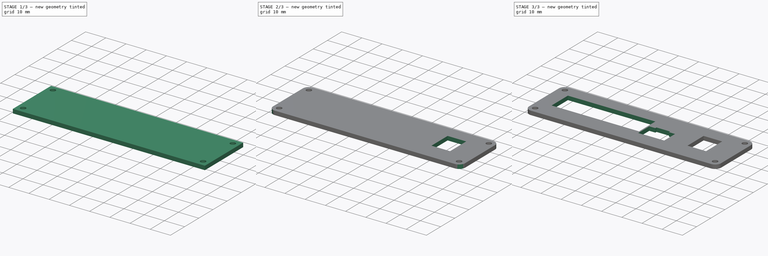
[diagram: build sequence overview — one tinted view per stage of 3, left to right]
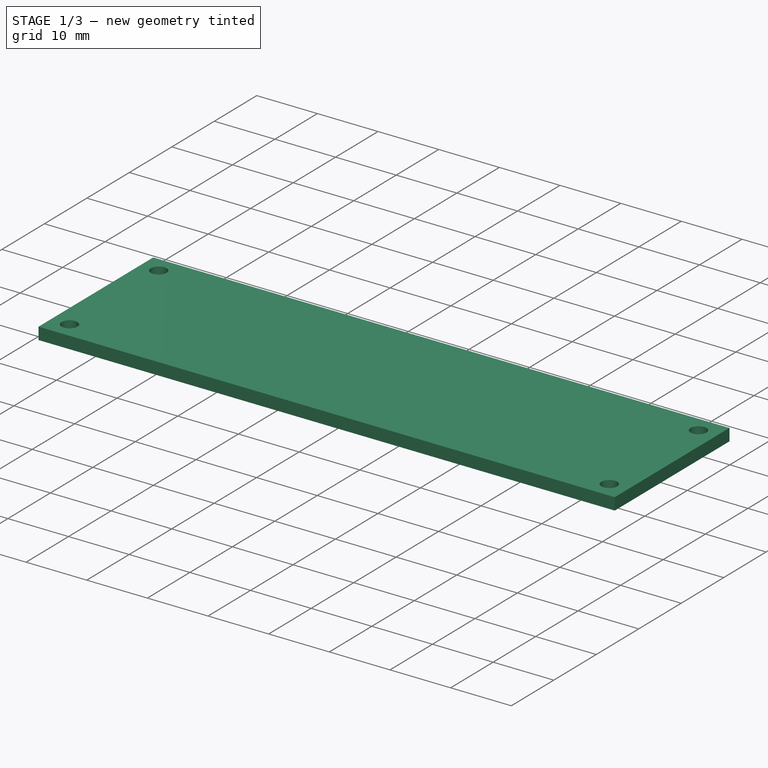
[diagram: stage 1 of 3 — iso view after this stage's code; geometry added in this stage tinted green]
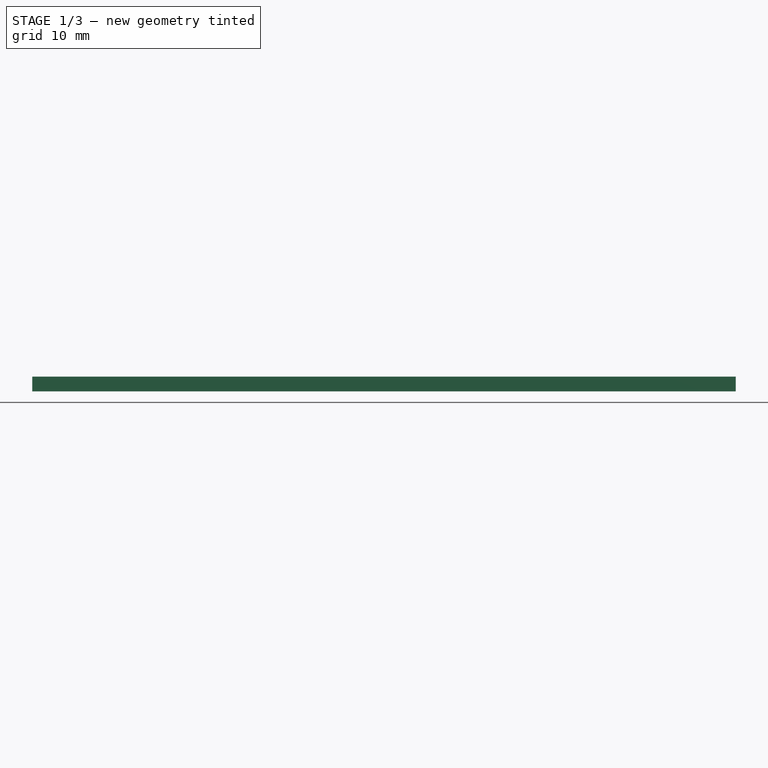
[diagram: stage 1 of 3 — front view after this stage's code; geometry added in this stage tinted green]
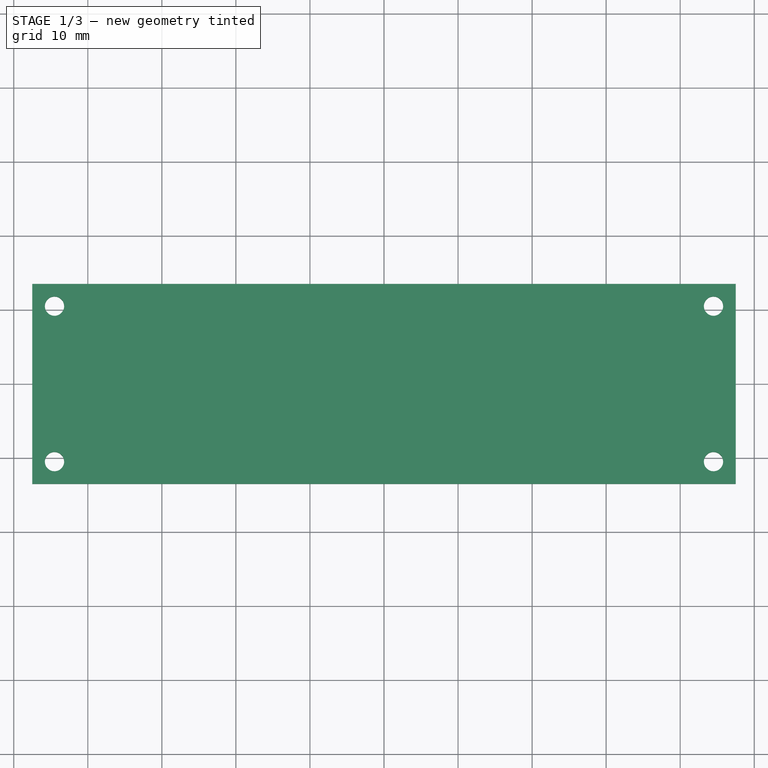
[diagram: stage 1 of 3 — top view after this stage's code; geometry added in this stage tinted green]
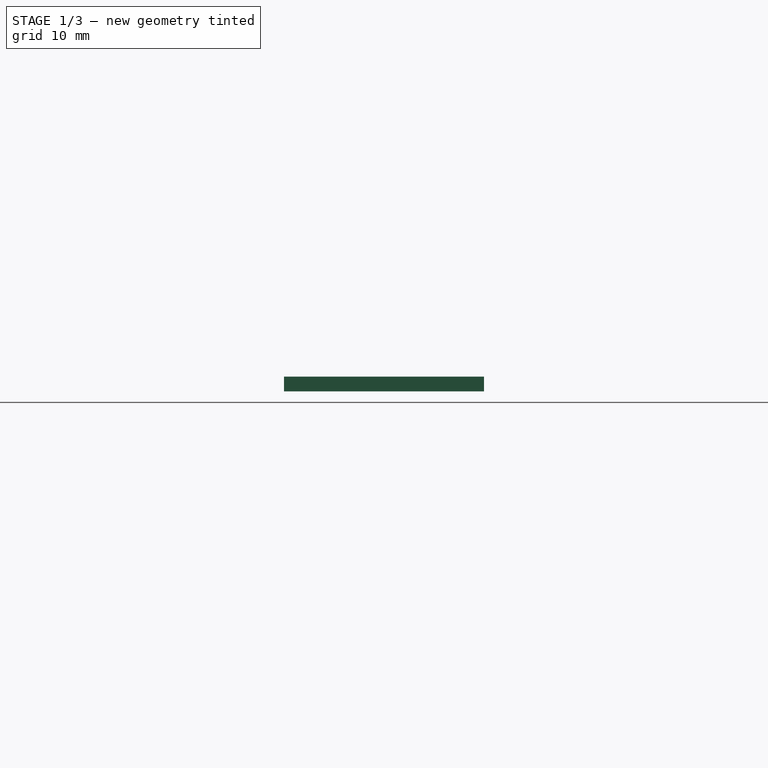
[diagram: stage 1 of 3 — right view after this stage's code; geometry added in this stage tinted green]
FCSTD DOCUMENT  (FreeCAD 1.1R44227 +568 (Git))
Label: Edgeberry_SenseAndDrive_faceplate
License: All rights reserved
LicenseURL: http://en.wikipedia.org/wiki/All_rights_reserved
objects: Sketcher::SketchObject×5, PartDesign::Pocket×4, PartDesign::Pad×1, PartDesign::Fillet×1, PartDesign::Body×1, App::Point×1
note: 29 computed .brp shape members not serialized (recipe doc carries the construction recipe); baked Part::Feature solids carry a one-line shape summary decoded from their .brp

FEATURE [Sketcher::SketchObject] Sketch
  ArcFitTolerance = 0
  AttachmentSupport = -> [XY_Plane]
  ExternalTypes = [0]
  FullyConstrained = true
  MakeInternals = false
  MapMode = 5
  _ExternalGeoVersion = 0
  sketch-geometry (4):
    g0: LineSegment StartX=47.5 StartY=13.5 StartZ=0 EndX=-47.5 EndY=13.5 EndZ=0
    g1: LineSegment StartX=-47.5 StartY=13.5 StartZ=0 EndX=-47.5 EndY=-13.5 EndZ=0
    g2: LineSegment StartX=-47.5 StartY=-13.5 StartZ=0 EndX=47.5 EndY=-13.5 EndZ=0
    g3: LineSegment StartX=47.5 StartY=-13.5 StartZ=0 EndX=47.5 EndY=13.5 EndZ=0
  constraints (12):
    c: Coincident(g0,g1)
    c: Coincident(g1,g2)
    c: Coincident(g2,g3)
    c: Coincident(g3,g0)
    c: Horizontal(g0)
    c: Horizontal(g2)
    c: Vertical(g1)
    c: Vertical(g3)
    c: DistanceX(g0,g0) = 95
    c: DistanceY(g2,g0) = 27
    c: DistanceX(g0,g-1) = 47.5
    c: DistanceY(g1,g-1) = 13.5
FEATURE [PartDesign::Pad] Pad
  Direction = (0,0,1)
  Length = 2
  Length2 = 10
  Profile = -> Sketch
  ReferenceAxis = -> Sketch [N_Axis]
  SideType = 0
  Suppressed = false
  Type = 0
  Type2 = 0
FEATURE [Sketcher::SketchObject] Sketch001
  ArcFitTolerance = 0
  AttachmentSupport = -> [Pad]
  ExternalGeometry = -> [Pad]
  ExternalTypes = [0]
  FullyConstrained = true
  MakeInternals = false
  MapMode = 5
  Placement = pos=(0,0,2) rot=(0,0,1;0rad)
  _ExternalGeoVersion = 0
  sketch-geometry (4):
    g0: Circle CenterX=-44.5 CenterY=10.5 CenterZ=0 NormalX=0 NormalY=0 NormalZ=1 AngleXU=0 Radius=1.3
    g1: Circle CenterX=44.5 CenterY=10.5 CenterZ=0 NormalX=0 NormalY=0 NormalZ=1 AngleXU=0 Radius=1.3
    g2: Circle CenterX=44.5 CenterY=-10.5 CenterZ=0 NormalX=0 NormalY=0 NormalZ=1 AngleXU=0 Radius=1.3
    g3: Circle CenterX=-44.5 CenterY=-10.5 CenterZ=0 NormalX=0 NormalY=0 NormalZ=1 AngleXU=0 Radius=1.3
  constraints (12):
    c: DistanceX(g-4,g0) = 3
    c: DistanceY(g0,g-4) = 3
    c: Diameter(g0) = 2.6
    c: DistanceX(g1,g-6) = 3
    c: DistanceY(g1,g-6) = 3
    c: Diameter(g1) = 2.6
    c: DistanceX(g2,g-6) = 3
    c: DistanceY(g-6,g2) = 3
    c: Diameter(g2) = 2.6
    c: DistanceX(g-4,g3) = 3
    c: DistanceY(g-4,g3) = 3
    c: Diameter(g3) = 2.6
FEATURE [PartDesign::Pocket] Pocket
  BaseFeature = -> Pad
  Direction = (0,0,-1)
  Length = 2
  Length2 = 5
  Profile = -> Sketch001
  ReferenceAxis = -> Sketch001 [N_Axis]
  SideType = 0
  Suppressed = false
  Type = 0
  Type2 = 0
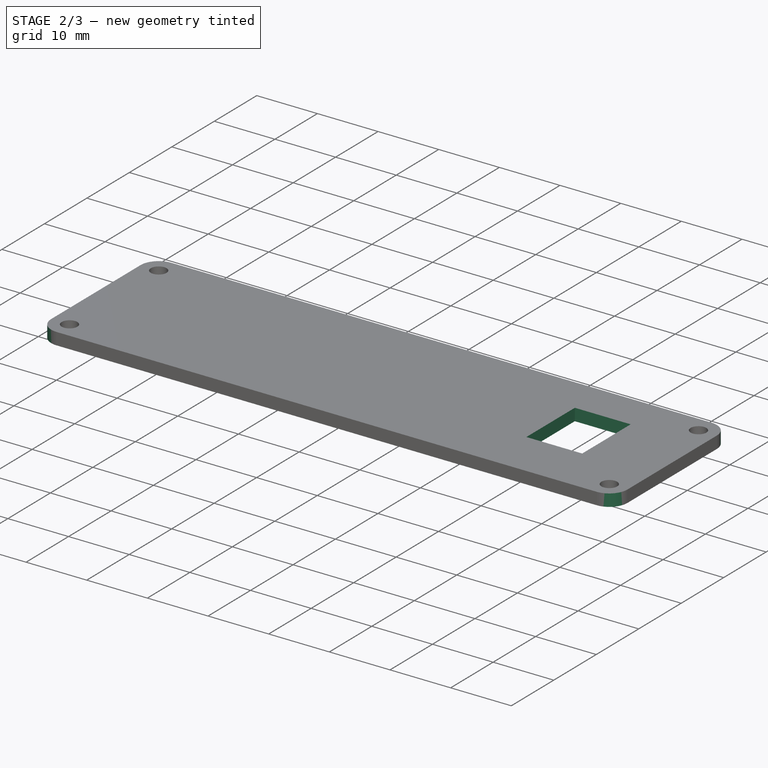
[diagram: stage 2 of 3 — iso view after this stage's code; geometry added in this stage tinted green]
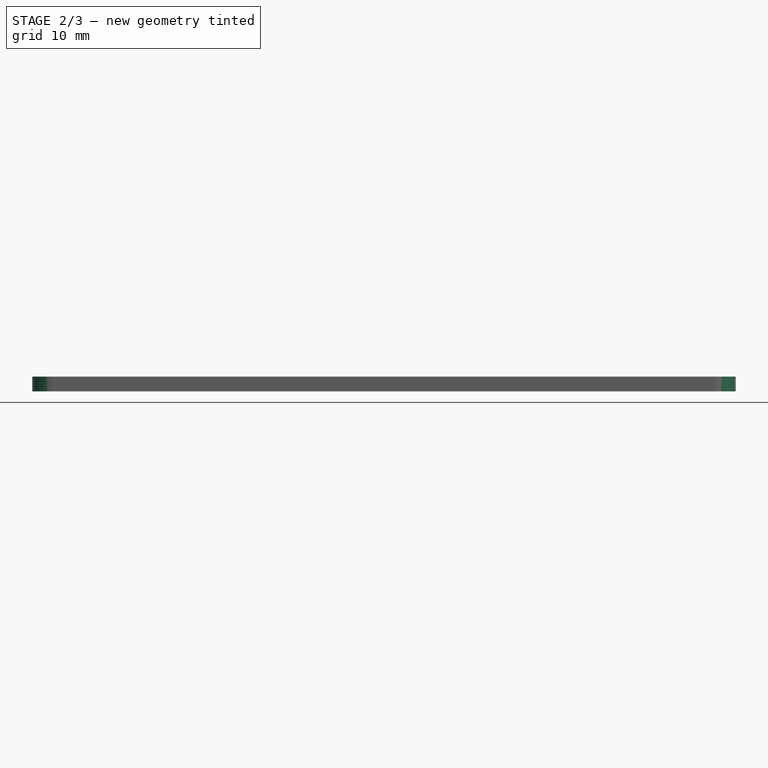
[diagram: stage 2 of 3 — front view after this stage's code; geometry added in this stage tinted green]
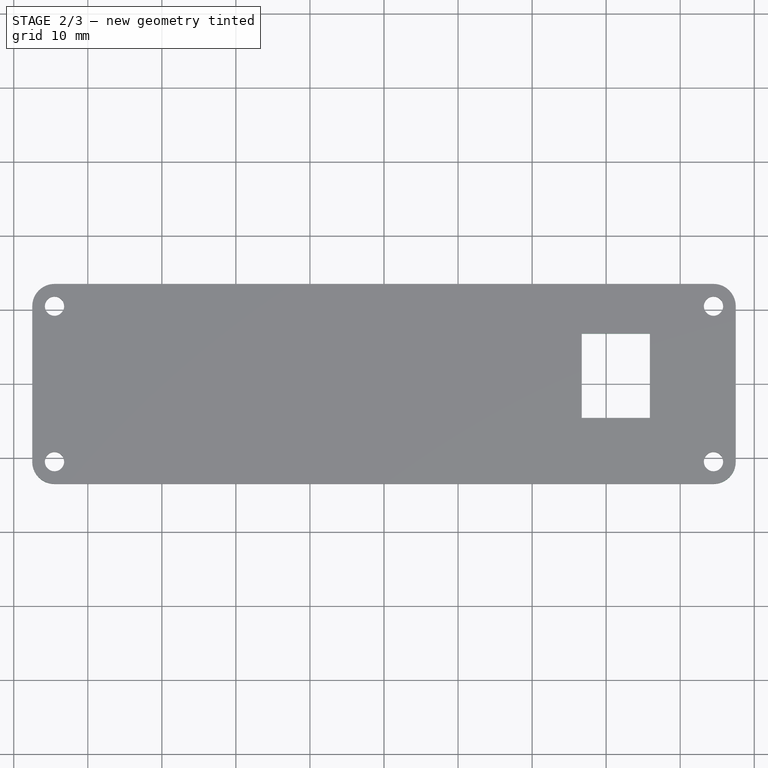
[diagram: stage 2 of 3 — top view after this stage's code; geometry added in this stage tinted green]
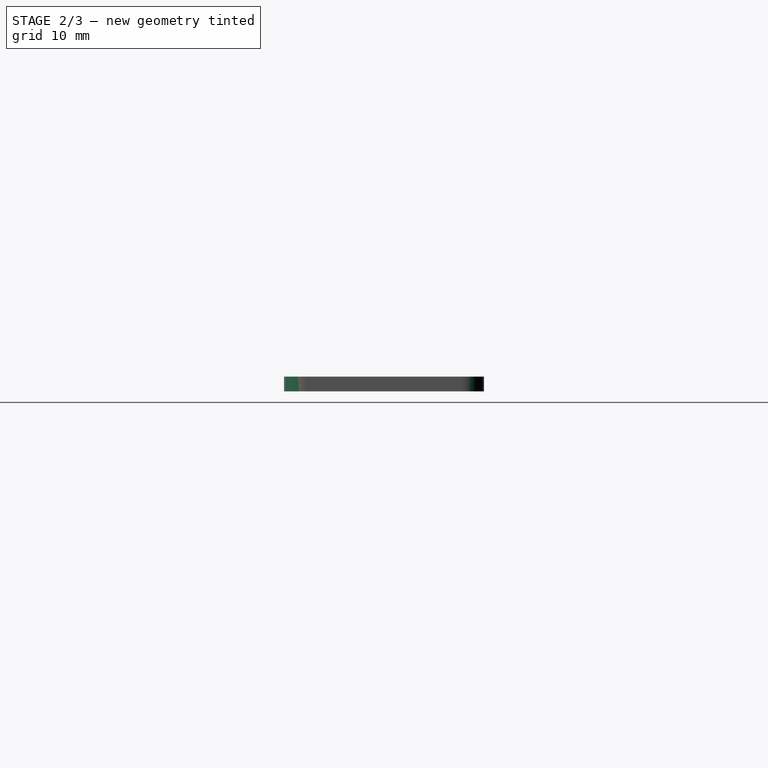
[diagram: stage 2 of 3 — right view after this stage's code; geometry added in this stage tinted green]
FEATURE [PartDesign::Fillet] Fillet
  Base = -> Pocket [Edge8,Edge5,Edge1,Edge2]
  BaseFeature = -> Pocket
  Radius = 3
  SupportTransform = false
  Suppressed = false
  UseAllEdges = false
FEATURE [Sketcher::SketchObject] Sketch002
  ArcFitTolerance = 0
  AttachmentSupport = -> [Fillet]
  ExternalGeometry = -> [Fillet]
  ExternalTypes = [0]
  FullyConstrained = true
  MakeInternals = false
  MapMode = 5
  Placement = pos=(0,0,2) rot=(0,0,1;0rad)
  _ExternalGeoVersion = 0
  sketch-geometry (4):
    g0: LineSegment StartX=26.7 StartY=6.8 StartZ=0 EndX=35.9 EndY=6.8 EndZ=0
    g1: LineSegment StartX=35.9 StartY=6.8 StartZ=0 EndX=35.9 EndY=-4.6 EndZ=0
    g2: LineSegment StartX=35.9 StartY=-4.6 StartZ=0 EndX=26.7 EndY=-4.6 EndZ=0
    g3: LineSegment StartX=26.7 StartY=-4.6 StartZ=0 EndX=26.7 EndY=6.8 EndZ=0
  constraints (12):
    c: Coincident(g0,g1)
    c: Coincident(g1,g2)
    c: Coincident(g2,g3)
    c: Coincident(g3,g0)
    c: Horizontal(g0)
    c: Horizontal(g2)
    c: Vertical(g1)
    c: Vertical(g3)
    c: DistanceX(g0,g-6) = 11.6
    c: DistanceX(g0,g0) = 9.2
    c: DistanceY(g2,g0) = 11.4
    c: DistanceY(g-5,g1) = 8.9
FEATURE [PartDesign::Pocket] Pocket001
  BaseFeature = -> Fillet
  Direction = (0,0,-1)
  Length = 2
  Length2 = 5
  Profile = -> Sketch002
  ReferenceAxis = -> Sketch002 [N_Axis]
  SideType = 0
  Suppressed = false
  Type = 0
  Type2 = 0
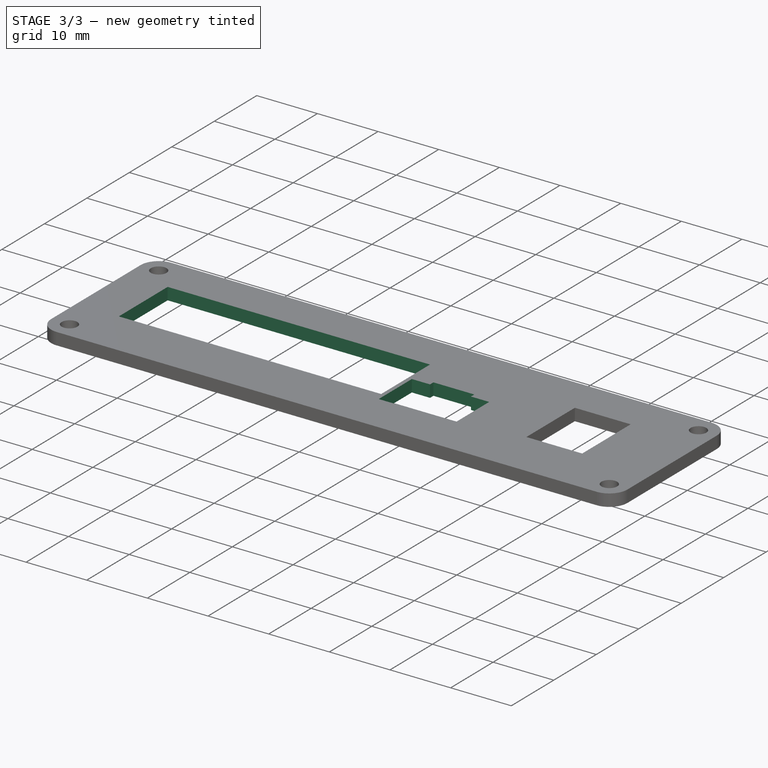
[diagram: stage 3 of 3 — iso view after this stage's code; geometry added in this stage tinted green]
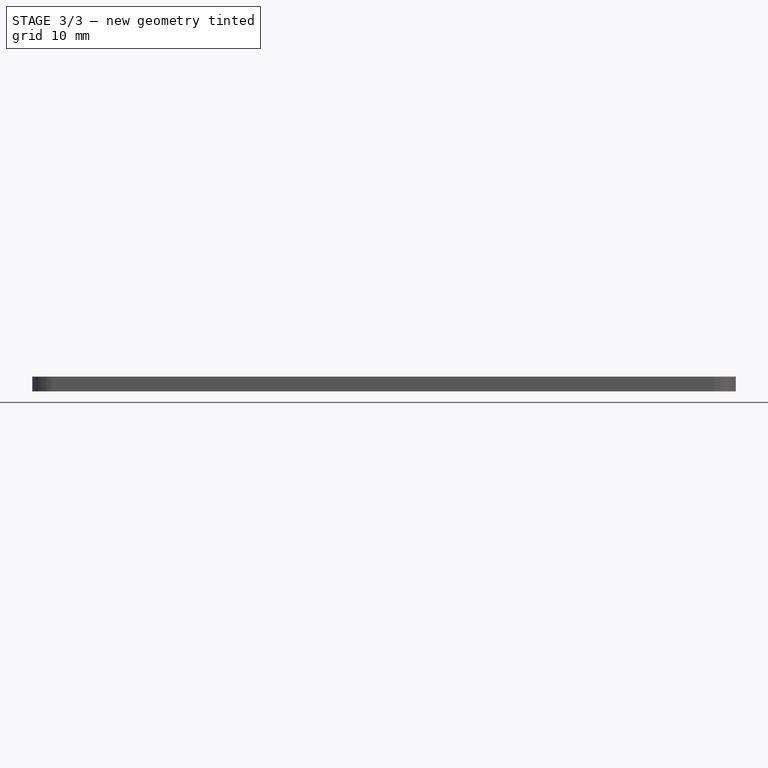
[diagram: stage 3 of 3 — front view after this stage's code; geometry added in this stage tinted green]
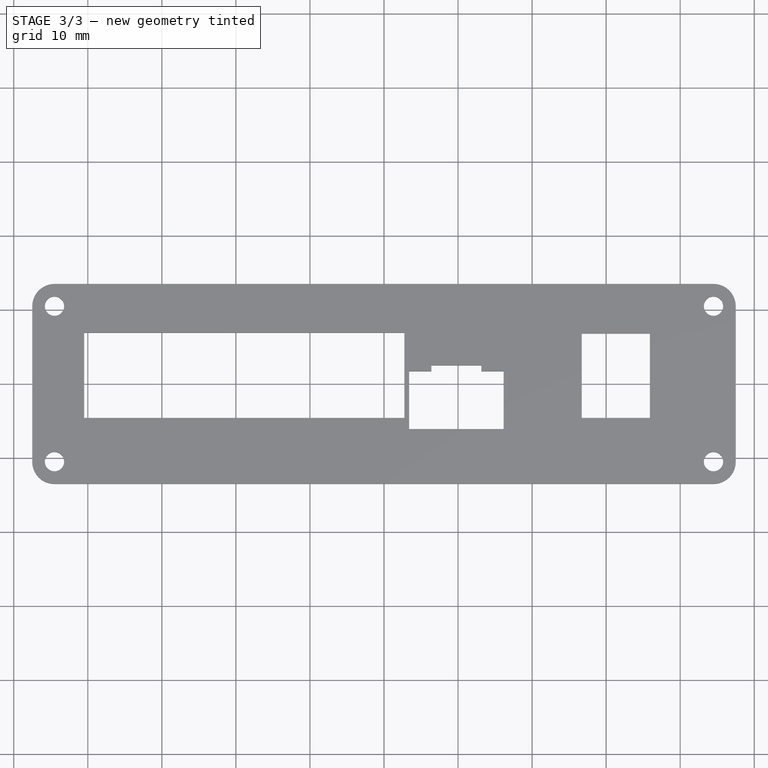
[diagram: stage 3 of 3 — top view after this stage's code; geometry added in this stage tinted green]
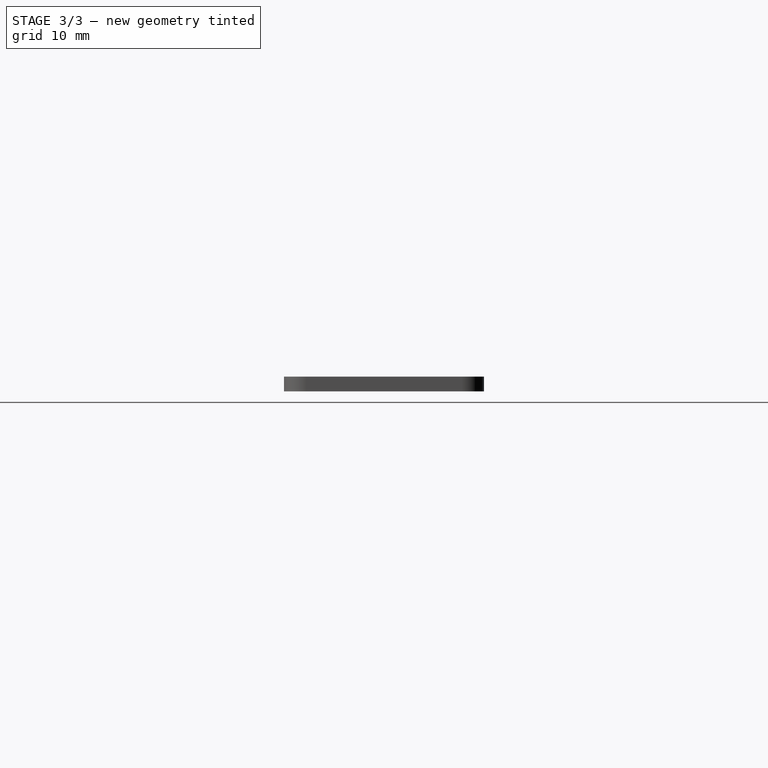
[diagram: stage 3 of 3 — right view after this stage's code; geometry added in this stage tinted green]
FEATURE [Sketcher::SketchObject] Sketch004  label="Digital_Outputs"
  ArcFitTolerance = 0
  AttachmentSupport = -> [Pocket001]
  ExternalGeometry = -> [Pocket001]
  ExternalTypes = [0]
  FullyConstrained = true
  MakeInternals = false
  MapMode = 5
  Placement = pos=(0,0,2) rot=(0,0,1;0rad)
  _ExternalGeoVersion = 0
  sketch-geometry (4):
    g0: LineSegment StartX=-40.5 StartY=6.9 StartZ=0 EndX=2.75 EndY=6.9 EndZ=0
    g1: LineSegment StartX=2.75 StartY=6.9 StartZ=0 EndX=2.75 EndY=-4.6 EndZ=0
    g2: LineSegment StartX=2.75 StartY=-4.6 StartZ=0 EndX=-40.5 EndY=-4.6 EndZ=0
    g3: LineSegment StartX=-40.5 StartY=-4.6 StartZ=0 EndX=-40.5 EndY=6.9 EndZ=0
  constraints (12):
    c: Coincident(g0,g1)
    c: Coincident(g1,g2)
    c: Coincident(g2,g3)
    c: Coincident(g3,g0)
    c: Horizontal(g0)
    c: Horizontal(g2)
    c: Vertical(g1)
    c: Vertical(g3)
    c: DistanceX(g-5,g2) = 7
    c: DistanceY(g-3,g2) = 8.9
    c: DistanceY(g2,g0) = 11.5
    c: DistanceX(g2,g1) = 43.25
FEATURE [PartDesign::Pocket] Pocket002  label="DigitalOutputs"
  BaseFeature = -> Pocket001
  Direction = (0,0,-1)
  Length = 2
  Length2 = 5
  Profile = -> Sketch004
  ReferenceAxis = -> Sketch004 [N_Axis]
  SideType = 0
  Suppressed = false
  Type = 0
  Type2 = 0
FEATURE [Sketcher::SketchObject] Sketch005  label="SensorPort"
  ArcFitTolerance = 0
  AttachmentSupport = -> [Pocket002]
  ExternalGeometry = -> [Pocket002]
  ExternalTypes = [0]
  FullyConstrained = true
  MakeInternals = false
  MapMode = 5
  Placement = pos=(0,0,2) rot=(0,0,1;0rad)
  _ExternalGeoVersion = 0
  sketch-geometry (8):
    g0: LineSegment StartX=16.15 StartY=1.7 StartZ=0 EndX=16.15 EndY=-6.1 EndZ=0
    g1: LineSegment StartX=16.15 StartY=-6.1 StartZ=0 EndX=3.4 EndY=-6.1 EndZ=0
    g2: LineSegment StartX=3.4 StartY=-6.1 StartZ=0 EndX=3.4 EndY=1.7 EndZ=0
    g3: LineSegment StartX=6.4 StartY=1.7 StartZ=0 EndX=6.4 EndY=2.5 EndZ=0
    g4: LineSegment StartX=13.15 StartY=1.7 StartZ=0 EndX=13.15 EndY=2.5 EndZ=0
    g5: LineSegment StartX=6.4 StartY=2.5 StartZ=0 EndX=13.15 EndY=2.5 EndZ=0
    g6: LineSegment StartX=3.4 StartY=1.7 StartZ=0 EndX=6.4 EndY=1.7 EndZ=0
    g7: LineSegment StartX=13.15 StartY=1.7 StartZ=0 EndX=16.15 EndY=1.7 EndZ=0
  constraints (25):
    c: Coincident(g0,g1)
    c: Coincident(g1,g2)
    c: Horizontal(g1)
    c: Vertical(g0)
    c: Vertical(g2)
    c: DistanceY(g-5,g1) = 7.4
    c: DistanceX(g1,g0) = 12.75
    c: DistanceX(g-4,g1) = 50.9
    c: Vertical(g3)
    c: Vertical(g4)
    c: Coincident(g5,g3)
    c: Coincident(g5,g4)
    c: Horizontal(g5)
    c: DistanceY(g1,g3) = 7.8
    c: DistanceY(g0,g4) = 7.8
    c: DistanceY(g3,g3) = 0.8
    c: DistanceX(g2,g3) = 3
    c: DistanceX(g4,g0) = 3
    c: DistanceY(g1,g2) = 7.8
    c: DistanceY(g-5) = -13.5
    c: Coincident(g6,g2)
    c: Coincident(g6,g3)
    c: Coincident(g7,g4)
    c: Coincident(g7,g0)
    c: Horizontal(g7)
FEATURE [PartDesign::Pocket] Pocket003
  BaseFeature = -> Pocket002
  Direction = (0,0,-1)
  Length = 2
  Length2 = 5
  Profile = -> Sketch005
  ReferenceAxis = -> Sketch005 [N_Axis]
  SideType = 0
  Suppressed = false
  Type = 0
  Type2 = 0
FEATURE [PartDesign::Body] Body
  AllowCompound = false
  Group = -> [Sketch,Pad,Sketch001,Pocket,Fillet,Sketch002,Pocket001,Sketch004,Pocket002,Sketch005,Pocket003]
  Origin = -> Origin
  Tip = -> Pocket003
FEATURE [App::Point] Origin001  label="Origin"
  Role = Origin
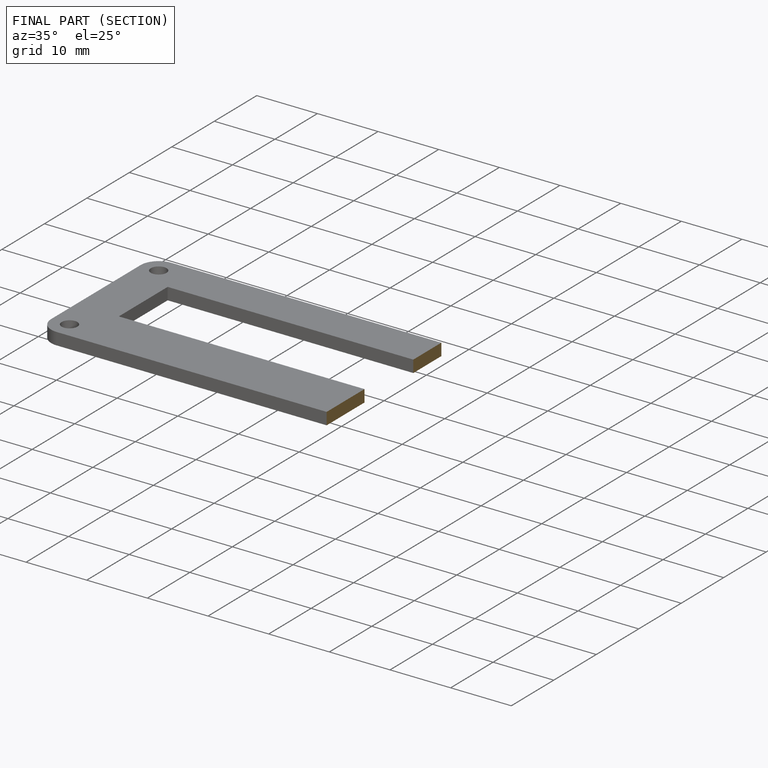
[diagram: finished part — half-section view (interior)]
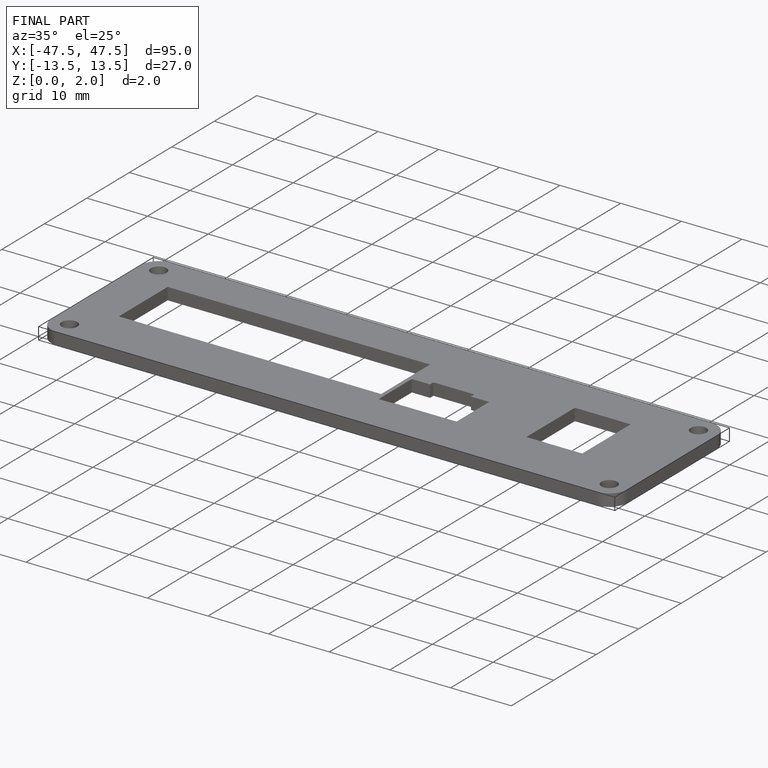
[diagram: finished part — iso view with bounding-box wireframe]
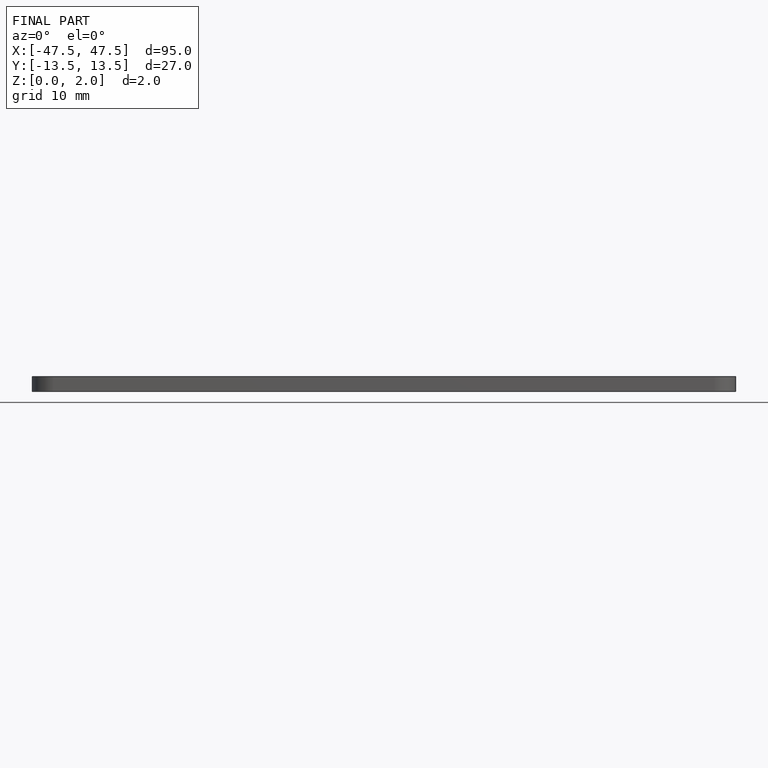
[diagram: finished part — front view with bounding-box wireframe]
